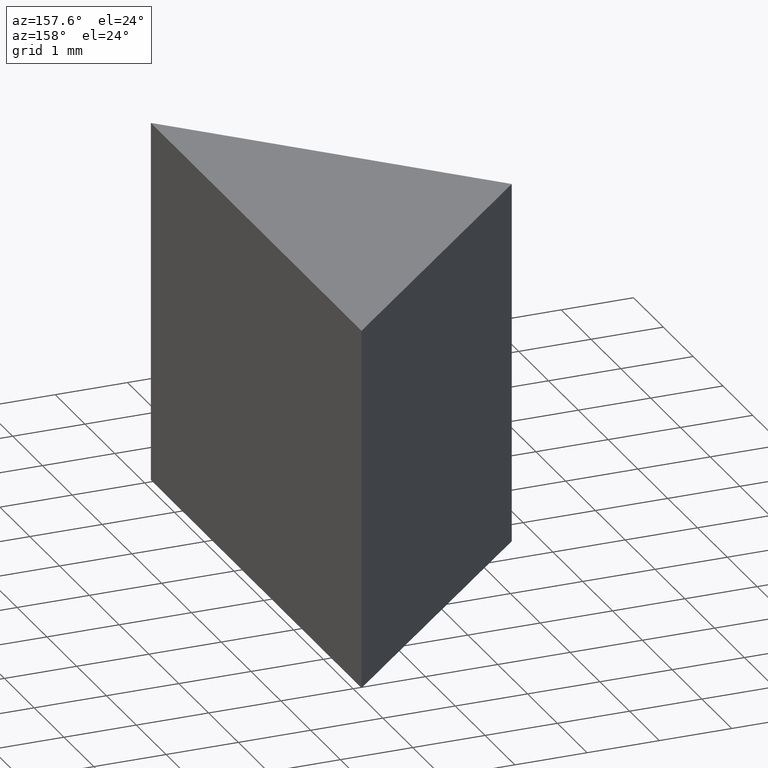
[diagram: clean part render]
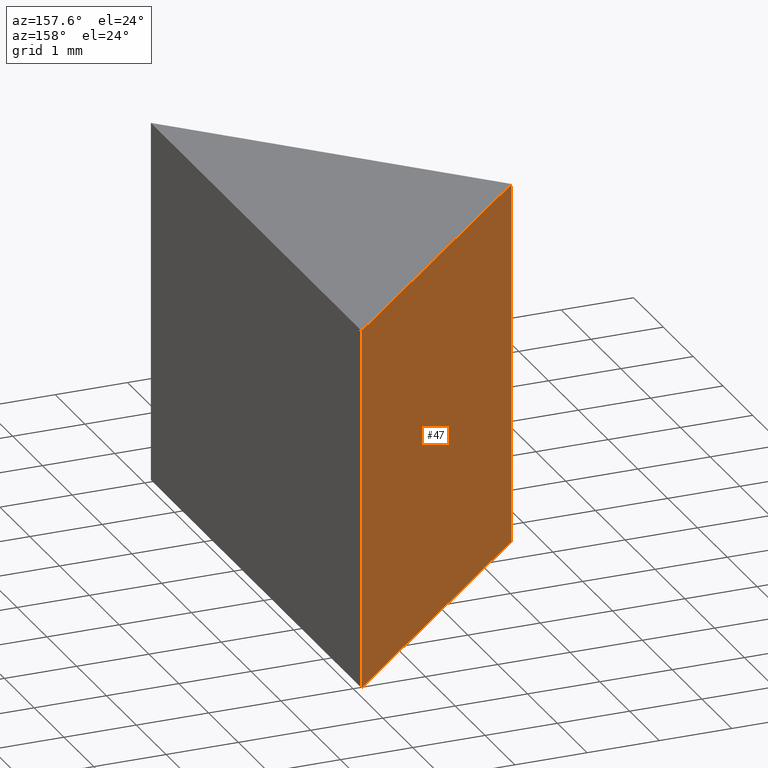
[diagram: same view with one face highlighted and labeled with its STEP entity id]
A machine part, auxiliary view. The second image highlights one B-rep face of the part: STEP entity #47.
In plain terms, the highlighted planar face has unit normal (0.7071, -0.7071, 0).
Its self-contained STEP definition (entity closure, byte-faithful):
#10 = VECTOR ( 'NONE', #90, 1000.000000000000000 ) ;
#18 = CARTESIAN_POINT ( 'NONE',  ( 55.47666995259492495, 13.77569255283406235, 5.000000000000000000 ) ) ;
#28 = CARTESIAN_POINT ( 'NONE',  ( 59.01220385852766981, 17.31122645876679655, 5.000000000000000000 ) ) ;
#31 = CARTESIAN_POINT ( 'NONE',  ( 59.01220385852766270, 17.31122645876678945, 5.000000000000000000 ) ) ;
#36 = CARTESIAN_POINT ( 'NONE',  ( 55.47666995259492495, 13.77569255283406235, 5.000000000000000000 ) ) ;
#40 = PLANE ( 'NONE',  #128 ) ;
#46 = DIRECTION ( 'NONE',  ( 0.7071067811865486830, 0.7071067811865464625, 0.000000000000000000 ) ) ;
#47 = ADVANCED_FACE ( 'NONE', ( #178 ), #40, .F. ) ;
#48 = CARTESIAN_POINT ( 'NONE',  ( 59.01220385852766981, 17.31122645876679655, 0.000000000000000000 ) ) ;
#60 = VECTOR ( 'NONE', #82, 1000.000000000000000 ) ;
#72 = ORIENTED_EDGE ( 'NONE', *, *, #195, .F. ) ;
#75 = VERTEX_POINT ( 'NONE', #31 ) ;
#78 = DIRECTION ( 'NONE',  ( 0.7071067811865464625, -0.7071067811865486830, 0.000000000000000000 ) ) ;
#80 = CARTESIAN_POINT ( 'NONE',  ( 55.47666995259492495, 13.77569255283406235, 5.000000000000000000 ) ) ;
#82 = DIRECTION ( 'NONE',  ( -0.7071067811865486830, -0.7071067811865464625, -0.000000000000000000 ) ) ;
#90 = DIRECTION ( 'NONE',  ( -0.000000000000000000, -0.000000000000000000, -1.000000000000000000 ) ) ;
#98 = CARTESIAN_POINT ( 'NONE',  ( 55.47666995259492495, 13.77569255283406235, 5.000000000000000000 ) ) ;
#103 = EDGE_CURVE ( 'NONE', #198, #107, #169, .T. ) ;
#106 = CARTESIAN_POINT ( 'NONE',  ( 55.47666995259492495, 13.77569255283406235, -9.757819552369539906E-16 ) ) ;
#107 = VERTEX_POINT ( 'NONE', #106 ) ;
#108 = LINE ( 'NONE', #28, #10 ) ;
#115 = ORIENTED_EDGE ( 'NONE', *, *, #118, .T. ) ;
#117 = VECTOR ( 'NONE', #204, 999.9999999999998863 ) ;
#118 = EDGE_CURVE ( 'NONE', #75, #198, #108, .T. ) ;
#127 = LINE ( 'NONE', #80, #134 ) ;
#128 = AXIS2_PLACEMENT_3D ( 'NONE', #98, #78, #46 ) ;
#133 = EDGE_CURVE ( 'NONE', #186, #107, #127, .T. ) ;
#134 = VECTOR ( 'NONE', #162, 1000.000000000000000 ) ;
#144 = CARTESIAN_POINT ( 'NONE',  ( 59.01220385852766270, 17.31122645876679300, -6.505213034913026604E-16 ) ) ;
#151 = ORIENTED_EDGE ( 'NONE', *, *, #103, .T. ) ;
#162 = DIRECTION ( 'NONE',  ( 0.000000000000000000, -0.000000000000000000, -1.000000000000000000 ) ) ;
#169 = LINE ( 'NONE', #48, #117 ) ;
#172 = LINE ( 'NONE', #36, #60 ) ;
#178 = FACE_OUTER_BOUND ( 'NONE', #199, .T. ) ;
#181 = ORIENTED_EDGE ( 'NONE', *, *, #133, .F. ) ;
#186 = VERTEX_POINT ( 'NONE', #18 ) ;
#195 = EDGE_CURVE ( 'NONE', #75, #186, #172, .T. ) ;
#198 = VERTEX_POINT ( 'NONE', #144 ) ;
#199 = EDGE_LOOP ( 'NONE', ( #181, #72, #115, #151 ) ) ;
#204 = DIRECTION ( 'NONE',  ( -0.7071067811865486830, -0.7071067811865464625, 0.000000000000000000 ) ) ;